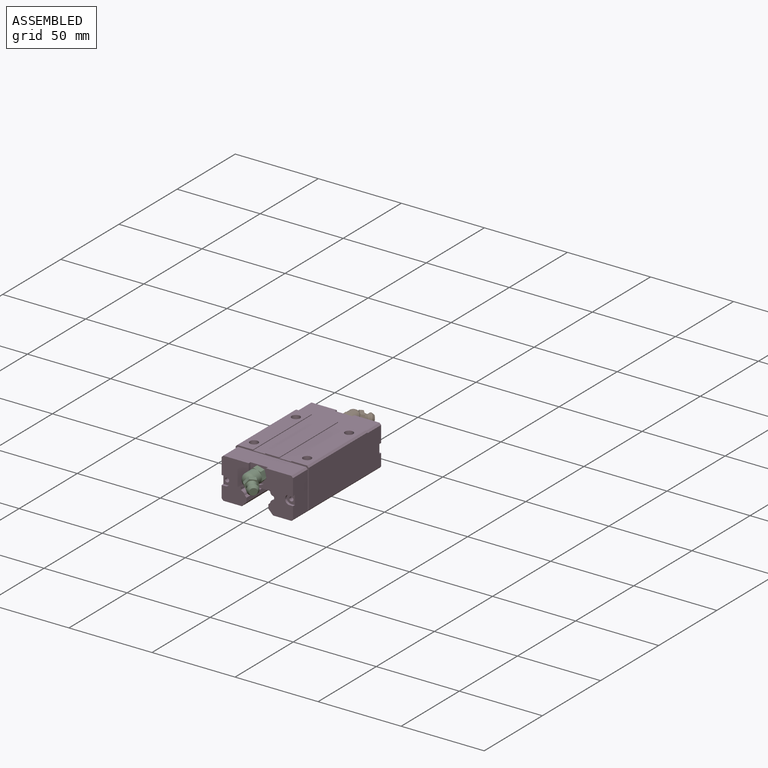
[diagram: assembled view]
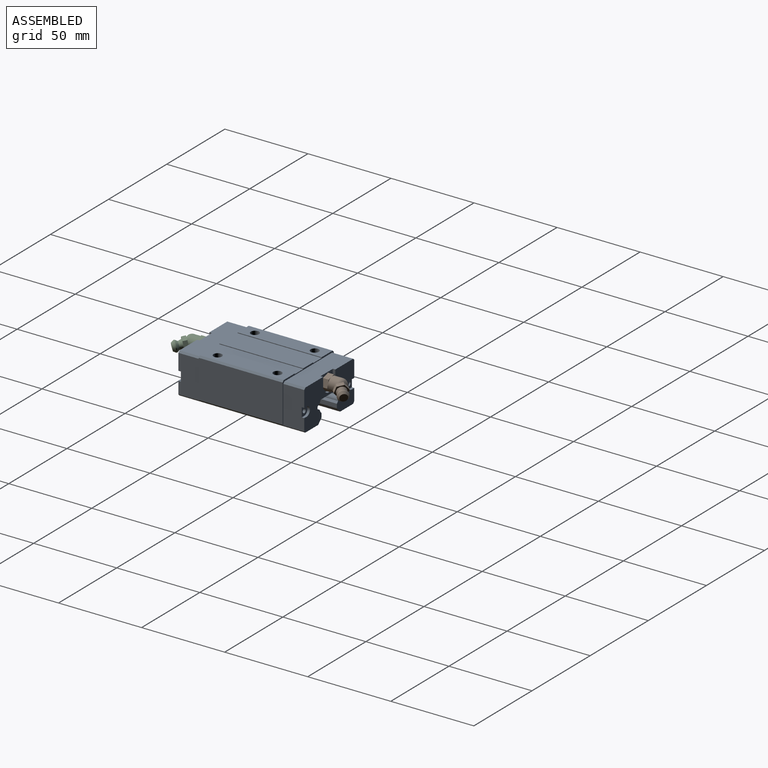
[diagram: assembled view, second angle]
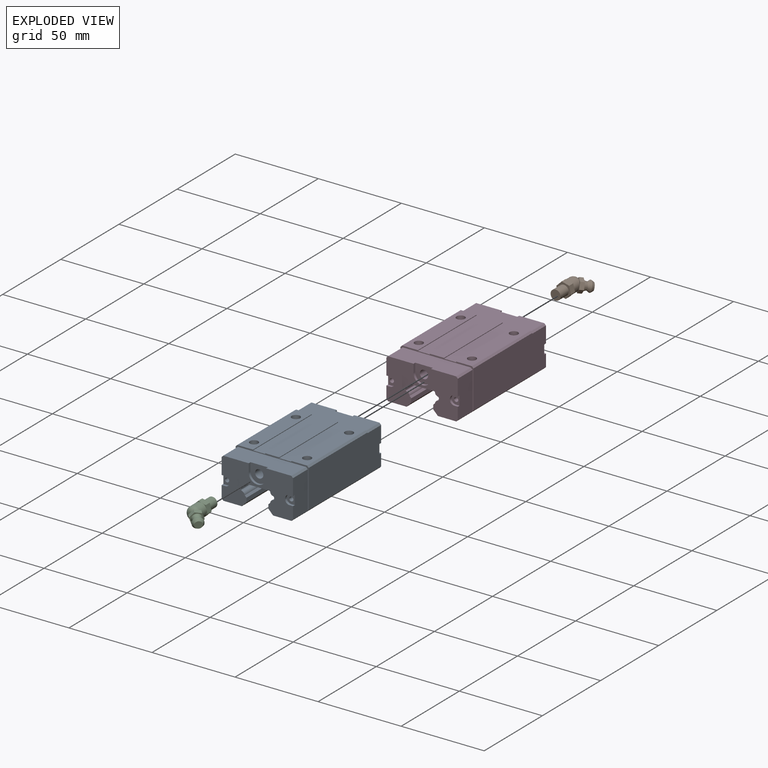
[diagram: exploded view]
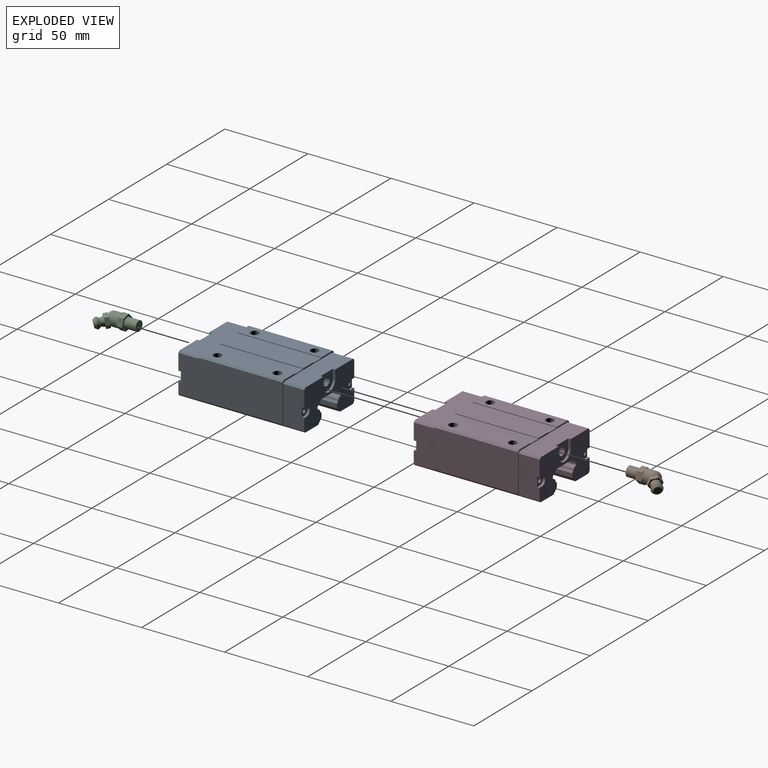
[diagram: exploded view, second angle]
FCSTD DOCUMENT  (FreeCAD 2021.614R24301 +3747 (Git))
Label: HGH20CA
License: Creative Commons Attribution
LicenseURL: http://creativecommons.org/licenses/by/4.0/
objects: Part::FeaturePython×21, App::FeaturePython×20, Sketcher::SketchObject×11, PartDesign::Pad×6, PartDesign::Pocket×4, App::Link×4, PartDesign::Plane×2, PartDesign::Body×2, App::DocumentObjectGroup×2, PartDesign::Mirrored×1, PartDesign::Fillet×1, PartDesign::Line×1, PartDesign::Revolution×1
note: 74 computed .brp shape members not serialized (recipe doc carries the construction recipe); baked Part::Feature solids carry a one-line shape summary decoded from their .brp

FEATURE [Sketcher::SketchObject] Sketch
  FullyConstrained = true
  MapMode = 5
  Placement = pos=(0,0,0) rot=(1,0,0;1.5708rad)
  Support = -> [XZ_Plane]
  sketch-geometry (20):
    g0: LineSegment StartX=-21 StartY=30 StartZ=0 EndX=-11.5 EndY=30 EndZ=0
    g1: LineSegment StartX=22 StartY=29 StartZ=0 EndX=22 EndY=6.1 EndZ=0
    g2: LineSegment StartX=20.5 StartY=4.6 StartZ=0 EndX=-20.5 EndY=4.6 EndZ=0
    g3: LineSegment StartX=-21.6 StartY=5.7 StartZ=0 EndX=-21.6 EndY=22 EndZ=0
    g4: GeomPoint [constr] X=0 Y=4.6 Z=0
    g5: LineSegment StartX=-20.5 StartY=4.6 StartZ=0 EndX=-21.6 EndY=5.7 EndZ=0
    g6: LineSegment StartX=20.5 StartY=4.6 StartZ=0 EndX=22 EndY=6.1 EndZ=0
    g7: LineSegment StartX=-22 StartY=29 StartZ=0 EndX=-21 EndY=30 EndZ=0
    g8: LineSegment StartX=21 StartY=30 StartZ=0 EndX=22 EndY=29 EndZ=0
    g9: LineSegment StartX=-11.5 StartY=30 StartZ=0 EndX=-11.5 EndY=29.6 EndZ=0
    g10: LineSegment StartX=-11.5 StartY=29.6 StartZ=0 EndX=-4.25 EndY=29.6 EndZ=0
    g11: LineSegment StartX=-4.25 StartY=29.6 StartZ=0 EndX=-4.25 EndY=30 EndZ=0
    g12: LineSegment StartX=4.25 StartY=30 StartZ=0 EndX=4.25 EndY=29.6 EndZ=0
    g13: LineSegment StartX=4.25 StartY=29.6 StartZ=0 EndX=11.5 EndY=29.6 EndZ=0
    g14: LineSegment StartX=11.5 StartY=29.6 StartZ=0 EndX=11.5 EndY=30 EndZ=0
    g15: LineSegment StartX=11.5 StartY=30 StartZ=0 EndX=21 EndY=30 EndZ=0
    g16: LineSegment StartX=-4.25 StartY=30 StartZ=0 EndX=4.25 EndY=30 EndZ=0
    g17: GeomPoint [constr] X=0 Y=30 Z=0
    g18: LineSegment StartX=-21.6 StartY=22 StartZ=0 EndX=-22 EndY=22 EndZ=0
    g19: LineSegment StartX=-22 StartY=22 StartZ=0 EndX=-22 EndY=29 EndZ=0
  constraints (54):
    c: Horizontal(g0)
    c: Horizontal(g2)
    c: Vertical(g1)
    c: Vertical(g3)
    c: PointOnObject(g4,g-2)
    c: Vertical(g9)
    c: Coincident(g10,g9)
    c: Horizontal(g10)
    c: Coincident(g11,g10)
    c: Vertical(g11)
    c: Vertical(g12)
    c: Coincident(g13,g12)
    c: Horizontal(g13)
    c: Coincident(g14,g13)
    c: Vertical(g14)
    c: Coincident(g0,g7)
    c: Coincident(g15,g8)
    c: Coincident(g1,g8)
    c: Coincident(g16,g12)
    c: Coincident(g15,g14)
    c: Tangent(g0,g15)
    c: Coincident(g0,g9)
    c: Coincident(g16,g11)
    c: Tangent(g0,g16)
    c: Coincident(g1,g6)
    c: Coincident(g2,g6)
    c: Coincident(g2,g5)
    c: Coincident(g3,g5)
    c: Symmetric(g2,g2,g4)
    c: PointOnObject(g17,g-2)
    c: Symmetric(g12,g11,g17)
    c: Equal(g13,g10)
    c: Symmetric(g8,g0,g17)
    c: Horizontal(g12,g10)
    c: DistanceX(g16,g16) = 8.5
    c: DistanceX(g2,g2) = 41
    c: DistanceY(g14,g14) = 0.4
    c: DistanceX(g14,g1) = 10.5
    c: DistanceY(g1,g8) = 1
    c: DistanceY(g-1,g2) = 4.6
    c: DistanceY(g-1,g8) = 30
    c: DistanceY(g2,g1) = 1.5
    c: Horizontal(g18)
    c: Coincident(g19,g18)
    c: Vertical(g19)
    c: DistanceX(g8,g1) = 1
    c: Coincident(g3,g18)
    c: Coincident(g7,g19)
    c: Horizontal(g1,g7)
    c: DistanceX(g7,g1) = 44
    c: DistanceX(g7,g0) = 10.5
    c: DistanceY(g18,g0) = 8
    c: DistanceX(g18,g3) = 0.4
    c: Angle(g2,g5) = 2.35619
FEATURE [PartDesign::Pad] Pad
  ClaimChildren = false
  Direction = (1,1,1)
  Fit = 0
  FitJoin = 0
  InnerFit = 0
  InnerFitJoin = 0
  InnerTaperAngle = 0
  InnerTaperAngleRev = 0
  Length = 50.5
  Length2 = 100
  Linearize = true
  Midplane = true
  NewSolid = false
  Placement = pos=(0,0,0) rot=(1,0,0;1.5708rad)
  Profile = -> Sketch
  Refine = true
  Suppress = false
  Type = 0
FEATURE [Sketcher::SketchObject] Sketch001
  ExternalGeometry = -> [Pad]
  FullyConstrained = true
  MapMode = 5
  Placement = pos=(0,1.32e-14,30) rot=(0,0,1;3.14159rad)
  Support = -> [Pad]
  sketch-geometry (4):
    g0: Circle CenterX=-16 CenterY=18 CenterZ=0 NormalX=0 NormalY=0 NormalZ=1 AngleXU=0 Radius=2.5
    g1: Circle CenterX=-16 CenterY=-18 CenterZ=0 NormalX=0 NormalY=0 NormalZ=1 AngleXU=0 Radius=2.5
    g2: Circle CenterX=16 CenterY=18 CenterZ=0 NormalX=0 NormalY=0 NormalZ=1 AngleXU=0 Radius=2.5
    g3: Circle CenterX=16 CenterY=-18 CenterZ=0 NormalX=0 NormalY=0 NormalZ=1 AngleXU=0 Radius=2.5
  constraints (12):
    c: Horizontal(g3,g1)
    c: Vertical(g1,g0)
    c: Vertical(g2,g3)
    c: Horizontal(g0,g2)
    c: DistanceX(g0,g2) = 32
    c: DistanceY(g3,g2) = 36
    c: Equal(g0,g2)
    c: Equal(g2,g3)
    c: Equal(g3,g1)
    c: Symmetric(g0,g3,g-1)
    c: DistanceX(g2,g-3) = 5.6
    c: Diameter(g2) = 5
FEATURE [Sketcher::SketchObject] Sketch002
  ExternalGeometry = -> [Pad]
  FullyConstrained = true
  MapMode = 5
  Placement = pos=(0,0,0) rot=(1,0,0;1.5708rad)
  Support = -> [XZ_Plane]
  sketch-geometry (8):
    g0: LineSegment StartX=-20.6 StartY=29.1 StartZ=0 EndX=20.4 EndY=29.1 EndZ=0
    g1: LineSegment StartX=21.4 StartY=28.1 StartZ=0 EndX=21.4 EndY=5.5 EndZ=0
    g2: LineSegment StartX=20.5 StartY=4.6 StartZ=0 EndX=-20.5 EndY=4.6 EndZ=0
    g3: LineSegment StartX=-21.6 StartY=5.7 StartZ=0 EndX=-21.6 EndY=28.1 EndZ=0
    g4: LineSegment StartX=-21.6 StartY=5.7 StartZ=0 EndX=-20.5 EndY=4.6 EndZ=0
    g5: LineSegment StartX=-21.6 StartY=28.1 StartZ=0 EndX=-20.6 EndY=29.1 EndZ=0
    g6: LineSegment StartX=20.4 StartY=29.1 StartZ=0 EndX=21.4 EndY=28.1 EndZ=0
    g7: LineSegment StartX=20.5 StartY=4.6 StartZ=0 EndX=21.4 EndY=5.5 EndZ=0
  constraints (22):
    c: Horizontal(g0)
    c: Horizontal(g2)
    c: Vertical(g1)
    c: Vertical(g3)
    c: Coincident(g3,g4)
    c: Coincident(g2,g4)
    c: Coincident(g2,g-7)
    c: Coincident(g3,g-7)
    c: Coincident(g0,g5)
    c: Coincident(g3,g5)
    c: Coincident(g0,g6)
    c: Coincident(g1,g6)
    c: Horizontal(g1,g3)
    c: DistanceX(g3,g0) = 1
    c: DistanceY(g3,g0) = 1
    c: DistanceX(g0,g1) = 1
    c: DistanceY(g2,g0) = 24.5
    c: DistanceX(g3,g1) = 43
    c: Coincident(g7,g-5)
    c: PointOnObject(g7,g-5)
    c: Coincident(g1,g7)
    c: PointOnObject(g2,g7)
FEATURE [PartDesign::Pad] Pad001
  BaseFeature = -> Pad
  ClaimChildren = false
  Direction = (1,1,1)
  Fit = 0
  FitJoin = 0
  InnerFit = 0
  InnerFitJoin = 0
  InnerTaperAngle = 0
  InnerTaperAngleRev = 0
  Length = 75.8
  Length2 = 100
  Linearize = true
  Midplane = true
  NewSolid = false
  Placement = pos=(0,0,0) rot=(1,0,0;1.5708rad)
  Profile = -> Sketch002
  Refine = true
  Suppress = false
  Type = 0
FEATURE [Sketcher::SketchObject] Sketch003
  ExternalGeometry = -> [Pad001]
  FullyConstrained = true
  MapMode = 5
  Placement = pos=(0,-37.9,8.3e-15) rot=(1,0,0;1.5708rad)
  Support = -> [Pad001]
  sketch-geometry (14):
    g0: ArcOfCircle CenterX=0 CenterY=24.1 CenterZ=0 NormalX=0 NormalY=0 NormalZ=1 AngleXU=0 Radius=5.25 StartAngle=3.14159 EndAngle=6.28319
    g1: ArcOfCircle CenterX=-19.35 CenterY=15.6 CenterZ=0 NormalX=0 NormalY=0 NormalZ=1 AngleXU=0 Radius=2.75 StartAngle=4.71239 EndAngle=7.85398
    g2: ArcOfCircle CenterX=19.35 CenterY=15.6 CenterZ=0 NormalX=0 NormalY=0 NormalZ=1 AngleXU=0 Radius=2.75 StartAngle=1.5708 EndAngle=4.71239
    g3: LineSegment StartX=-5.25 StartY=24.1 StartZ=0 EndX=-5.25 EndY=29.1 EndZ=0
    g4: LineSegment StartX=5.25 StartY=24.1 StartZ=0 EndX=5.25 EndY=29.1 EndZ=0
    g5: LineSegment StartX=-5.25 StartY=29.1 StartZ=0 EndX=5.25 EndY=29.1 EndZ=0
    g6: LineSegment StartX=-19.35 StartY=18.35 StartZ=0 EndX=-21.6 EndY=18.35 EndZ=0
    g7: LineSegment StartX=-19.35 StartY=12.85 StartZ=0 EndX=-21.6 EndY=12.85 EndZ=0
    g8: LineSegment [constr] StartX=-19.35 StartY=15.6 StartZ=0 EndX=0 EndY=15.6 EndZ=0
    g9: LineSegment [constr] StartX=0 StartY=15.6 StartZ=0 EndX=19.35 EndY=15.6 EndZ=0
    g10: LineSegment StartX=19.35 StartY=18.35 StartZ=0 EndX=21.4 EndY=18.35 EndZ=0
    g11: LineSegment StartX=19.35 StartY=12.85 StartZ=0 EndX=21.4 EndY=12.85 EndZ=0
    g12: LineSegment StartX=-21.6 StartY=18.35 StartZ=0 EndX=-21.6 EndY=12.85 EndZ=0
    g13: LineSegment StartX=21.4 StartY=18.35 StartZ=0 EndX=21.4 EndY=12.85 EndZ=0
  constraints (38):
    c: PointOnObject(g0,g-2)
    c: Horizontal(g1,g2)
    c: Equal(g1,g2)
    c: Diameter(g0) = 10.5
    c: DistanceY(g0,g-3) = 5
    c: PointOnObject(g3,g-3)
    c: Vertical(g3)
    c: PointOnObject(g4,g-3)
    c: Vertical(g4)
    c: Tangent(g0,g3) = 1.5708
    c: Tangent(g0,g4) = -1.5708
    c: Coincident(g5,g3)
    c: Coincident(g5,g4)
    c: PointOnObject(g6,g-4)
    c: Horizontal(g6)
    c: PointOnObject(g7,g-4)
    c: Horizontal(g7)
    c: Diameter(g1) = 5.5
    c: Coincident(g8,g1)
    c: Horizontal(g8)
    c: Coincident(g9,g8)
    c: Coincident(g9,g2)
    c: Equal(g9,g8)
    c: PointOnObject(g10,g-5)
    c: Horizontal(g10)
    c: PointOnObject(g11,g-5)
    c: Horizontal(g11)
    c: DistanceY(g2,g-3) = 13.5
    c: DistanceX(g-4,g1) = 2.25
    c: PointOnObject(g8,g-2)
    c: Tangent(g1,g7) = 1.5708
    c: Tangent(g1,g6) = -1.5708
    c: Tangent(g2,g10) = 1.5708
    c: Tangent(g2,g11) = -1.5708
    c: Coincident(g12,g6)
    c: Coincident(g12,g7)
    c: Coincident(g13,g10)
    c: Coincident(g13,g11)
FEATURE [PartDesign::Pocket] Pocket
  BaseFeature = -> Pad001
  ClaimChildren = false
  Fit = 0
  FitJoin = 0
  InnerFit = 0
  InnerFitJoin = 0
  InnerTaperAngle = 0
  InnerTaperAngleRev = 0
  Length = 1.5
  Length2 = 100
  Linearize = true
  NewSolid = false
  Placement = pos=(0,0,0) rot=(1,0,0;1.5708rad)
  Profile = -> Sketch003
  Refine = true
  Suppress = false
  Type = 0
FEATURE [Sketcher::SketchObject] Sketch004
  ExternalGeometry = -> [Pocket]
  FullyConstrained = true
  MapMode = 5
  Placement = pos=(0,-36.4,2.95e-14) rot=(1,0,0;1.5708rad)
  Support = -> [Pocket]
  sketch-geometry (3):
    g0: Circle CenterX=-19.35 CenterY=15.6 CenterZ=0 NormalX=0 NormalY=0 NormalZ=1 AngleXU=0 Radius=1.25
    g1: Circle CenterX=19.35 CenterY=15.6 CenterZ=0 NormalX=0 NormalY=0 NormalZ=1 AngleXU=0 Radius=1.25
    g2: Circle CenterX=0 CenterY=24.1 CenterZ=0 NormalX=0 NormalY=0 NormalZ=1 AngleXU=0 Radius=2.5
  constraints (6):
    c: Coincident(g0,g-3)
    c: Coincident(g1,g-5)
    c: Coincident(g2,g-4)
    c: Diameter(g2) = 5
    c: Diameter(g1) = 2.5
    c: Equal(g1,g0)
FEATURE [PartDesign::Pocket] Pocket001
  BaseFeature = -> Pocket
  ClaimChildren = false
  Fit = 0
  FitJoin = 0
  InnerFit = 0
  InnerFitJoin = 0
  InnerTaperAngle = 0
  InnerTaperAngleRev = 0
  Length = 8
  Length2 = 100
  Linearize = true
  NewSolid = false
  Placement = pos=(0,0,0) rot=(1,0,0;1.5708rad)
  Profile = -> Sketch004
  Refine = true
  Suppress = false
  Type = 0
FEATURE [PartDesign::Mirrored] Mirrored
  BaseFeature = -> Pocket001
  CopyShape = false
  MirrorPlane = -> XZ_Plane
  NewSolid = false
  OriginalSubs = -> [Pocket001,Pocket]
  Originals = -> [Pocket001,Pocket]
  ParallelTransform = true
  Placement = pos=(0,0,0) rot=(1,0,0;1.5708rad)
  Refine = true
  SubTransform = true
  Suppress = false
  _Version = 1
FEATURE [Sketcher::SketchObject] Sketch005
  FullyConstrained = true
  MapMode = 5
  Placement = pos=(0,0,0) rot=(1,0,0;1.5708rad)
  Support = -> [XZ_Plane001]
  sketch-geometry (1):
    g0: Circle CenterX=0 CenterY=0 CenterZ=0 NormalX=0 NormalY=0 NormalZ=1 AngleXU=0 Radius=3
  constraints (2):
    c: Coincident(g0,g-1)
    c: Radius(g0) = 3
FEATURE [PartDesign::Pad] Pad002
  ClaimChildren = false
  Direction = (1,1,1)
  Fit = 0
  FitJoin = 0
  InnerFit = 0
  InnerFitJoin = 0
  InnerTaperAngle = 0
  InnerTaperAngleRev = 0
  Length = 7
  Length2 = 100
  Linearize = true
  NewSolid = false
  Placement = pos=(0,0,0) rot=(1,0,0;1.5708rad)
  Profile = -> Sketch005
  Refine = true
  Suppress = false
  Type = 0
FEATURE [Sketcher::SketchObject] Sketch006
  FullyConstrained = true
  MapMode = 5
  Placement = pos=(0,0,0) rot=(-1,0,0;1.5708rad)
  Support = -> [Pad002]
  sketch-geometry (7):
    g0: LineSegment StartX=4 StartY=-2.3094 StartZ=0 EndX=4 EndY=2.3094 EndZ=0
    g1: LineSegment StartX=4 StartY=2.3094 StartZ=0 EndX=-4e-16 EndY=4.6188 EndZ=0
    g2: LineSegment StartX=-4e-16 StartY=4.6188 StartZ=0 EndX=-4 EndY=2.3094 EndZ=0
    g3: LineSegment StartX=-4 StartY=2.3094 StartZ=0 EndX=-4 EndY=-2.3094 EndZ=0
    g4: LineSegment StartX=-4 StartY=-2.3094 StartZ=0 EndX=4e-16 EndY=-4.6188 EndZ=0
    g5: LineSegment StartX=4e-16 StartY=-4.6188 StartZ=0 EndX=4 EndY=-2.3094 EndZ=0
    g6: Circle [constr] CenterX=0 CenterY=0 CenterZ=0 NormalX=0 NormalY=0 NormalZ=1 AngleXU=0 Radius=4.6188
  constraints (16):
    c: Coincident(g0,g1)
    c: Coincident(g1,g2)
    c: Coincident(g2,g3)
    c: Coincident(g3,g4)
    c: Coincident(g4,g5)
    c: Coincident(g5,g0)
    c: Equal(g0, g1-g5) x5
    c: PointOnObject(g0,g6)
    c: PointOnObject(g1,g6)
    c: PointOnObject(g2,g6)
    c: PointOnObject(g3,g6)
    c: PointOnObject(g4,g6)
    c: PointOnObject(g5,g6)
    c: Coincident(g6,g-1)
    c: Vertical(g0)
    c: DistanceX(g2,g0) = 8
FEATURE [PartDesign::Pad] Pad003
  BaseFeature = -> Pad002
  ClaimChildren = false
  Direction = (1,1,1)
  Fit = 0
  FitJoin = 0
  InnerFit = 0
  InnerFitJoin = 0
  InnerTaperAngle = 0
  InnerTaperAngleRev = 0
  Length = 3.5
  Length2 = 100
  Linearize = true
  NewSolid = false
  Placement = pos=(0,0,0) rot=(1,0,0;1.5708rad)
  Profile = -> Sketch006
  Refine = true
  Suppress = false
  Type = 0
FEATURE [Sketcher::SketchObject] Sketch007
  FullyConstrained = true
  MapMode = 5
  Placement = pos=(0,3.5,8e-16) rot=(-1,0,0;1.5708rad)
  Support = -> [Pad003]
  sketch-geometry (1):
    g0: Circle CenterX=0 CenterY=0 CenterZ=0 NormalX=0 NormalY=0 NormalZ=1 AngleXU=0 Radius=4
  constraints (2):
    c: Coincident(g0,g-1)
    c: Radius(g0) = 4
FEATURE [PartDesign::Pad] Pad004
  BaseFeature = -> Pad003
  ClaimChildren = false
  Direction = (1,1,1)
  Fit = 0
  FitJoin = 0
  InnerFit = 0
  InnerFitJoin = 0
  InnerTaperAngle = 0
  InnerTaperAngleRev = 0
  Length = 8
  Length2 = 100
  Linearize = true
  NewSolid = false
  Placement = pos=(0,0,0) rot=(1,0,0;1.5708rad)
  Profile = -> Sketch007
  Refine = true
  Suppress = false
  Type = 0
FEATURE [PartDesign::Fillet] Fillet
  Base = -> Pad004 [Edge35]
  BaseFeature = -> Pad004
  NewSolid = false
  Placement = pos=(0,0,0) rot=(1,0,0;1.5708rad)
  Radius = 3
  Refine = true
  SupportTransform = false
  Suppress = false
FEATURE [PartDesign::Plane] DatumPlane
  AttachmentOffset = pos=(0,0,0) rot=(1,0,0;0.785398rad)
  Length = 50
  MapMode = 5
  MinimumLength = 10
  MinimumWidth = 10
  Placement = pos=(0,11.5,3e-15) rot=(-1,0,0;0.785398rad)
  ResizeMode = 0
  Support = -> [Fillet]
  Width = 70.7107
FEATURE [Sketcher::SketchObject] Sketch008
  FullyConstrained = true
  MapMode = 5
  Placement = pos=(0,11.5,3.6e-15) rot=(-1,0,0;0.785398rad)
  Support = -> [DatumPlane]
  sketch-geometry (7):
    g0: LineSegment StartX=3.5 StartY=-4.62073 StartZ=0 EndX=3.5 EndY=-0.579274 EndZ=0
    g1: LineSegment StartX=3.5 StartY=-0.579274 StartZ=0 EndX=8.273e-13 EndY=1.44145 EndZ=0
    g2: LineSegment StartX=8.273e-13 StartY=1.44145 StartZ=0 EndX=-3.5 EndY=-0.579274 EndZ=0
    g3: LineSegment StartX=-3.5 StartY=-0.579274 StartZ=0 EndX=-3.5 EndY=-4.62073 EndZ=0
    g4: LineSegment StartX=-3.5 StartY=-4.62073 StartZ=0 EndX=-8.273e-13 EndY=-6.64145 EndZ=0
    g5: LineSegment StartX=-8.273e-13 StartY=-6.64145 StartZ=0 EndX=3.5 EndY=-4.62073 EndZ=0
    g6: Circle [constr] CenterX=0 CenterY=-2.6 CenterZ=0 NormalX=0 NormalY=0 NormalZ=1 AngleXU=0 Radius=4.04145
  constraints (17):
    c: Coincident(g0,g1)
    c: Coincident(g1,g2)
    c: Coincident(g2,g3)
    c: Coincident(g3,g4)
    c: Coincident(g4,g5)
    c: Coincident(g5,g0)
    c: Equal(g0, g1-g5) x5
    c: PointOnObject(g0,g6)
    c: PointOnObject(g1,g6)
    c: PointOnObject(g2,g6)
    c: PointOnObject(g3,g6)
    c: PointOnObject(g4,g6)
    c: PointOnObject(g5,g6)
    c: PointOnObject(g6,g-2)
    c: Vertical(g0)
    c: DistanceX(g2,g0) = 7
    c: DistanceY(g6,g-1) = 2.6
FEATURE [PartDesign::Pad] Pad005
  BaseFeature = -> Fillet
  ClaimChildren = false
  Direction = (1,1,1)
  Fit = 0
  FitJoin = 0
  InnerFit = 0
  InnerFitJoin = 0
  InnerTaperAngle = 0
  InnerTaperAngleRev = 0
  Length = 2.5
  Length2 = 100
  Linearize = true
  NewSolid = false
  Placement = pos=(0,0,0) rot=(1,0,0;1.5708rad)
  Profile = -> Sketch008
  Refine = true
  Suppress = false
  Type = 0
FEATURE [PartDesign::Plane] DatumPlane001
  AttachmentOffset = pos=(0,0,0) rot=(0,1,0;1.5708rad)
  Length = 70.7107
  MapMode = 5
  MinimumLength = 10
  MinimumWidth = 10
  Placement = pos=(2e-16,7.51777,7.51777) rot=(-0.357407,0.862856,-0.357407;1.71777rad)
  ResizeMode = 0
  Support = -> [Pad005]
  Width = 70.7107
FEATURE [Sketcher::SketchObject] Sketch009
  ExternalGeometry = -> [Pad005]
  FullyConstrained = true
  MapMode = 5
  Placement = pos=(2e-16,7.51777,7.51777) rot=(-0.357407,0.862856,-0.357407;1.71777rad)
  Support = -> [DatumPlane001]
  sketch-geometry (7):
    g0: LineSegment StartX=0 StartY=8.43173 StartZ=0 EndX=-2 EndY=7.78173 EndZ=0
    g1: LineSegment StartX=-4 StartY=8.78173 StartZ=0 EndX=-5.5 EndY=7.78173 EndZ=0
    g2: LineSegment StartX=-5.5 StartY=7.78173 StartZ=0 EndX=-5.5 EndY=5.53173 EndZ=0
    g3: LineSegment StartX=-5.5 StartY=5.53173 StartZ=0 EndX=1.8e-15 EndY=5.53173 EndZ=0
    g4: LineSegment StartX=1.8e-15 StartY=5.53173 StartZ=0 EndX=0 EndY=8.43173 EndZ=0
    g5: LineSegment StartX=-4 StartY=8.78173 StartZ=0 EndX=-3.5 EndY=8.78173 EndZ=0
    g6: LineSegment StartX=-3.5 StartY=8.78173 StartZ=0 EndX=-2 EndY=7.78173 EndZ=0
  constraints (20):
    c: PointOnObject(g0,g-2)
    c: Vertical(g2)
    c: Coincident(g3,g2)
    c: Horizontal(g3)
    c: Coincident(g4,g3)
    c: Coincident(g4,g0)
    c: Symmetric(g-3,g-4,g3)
    c: DistanceY(g4,g4) = 2.9
    c: DistanceX(g3,g3) = 5.5
    c: Coincident(g2,g1)
    c: DistanceX(g1,g1) = 1.5
    c: Coincident(g5,g1)
    c: Coincident(g6,g5)
    c: Coincident(g6,g0)
    c: Horizontal(g5)
    c: DistanceX(g5,g0) = 1.5
    c: Horizontal(g1,g0)
    c: DistanceX(g1,g0) = 3.5
    c: DistanceY(g2,g2) = 2.25
    c: DistanceY(g2,g1) = 3.25
FEATURE [PartDesign::Line] DatumLine
  AttacherType = Attacher::AttachEngineLine
  Length = 70.7107
  MapMode = 29
  MinimumLength = 10
  Placement = pos=(2e-16,11.4293,3.60624) rot=(1,0,0;2.35619rad)
  ResizeMode = 0
  Support = -> [Sketch009]
FEATURE [PartDesign::Revolution] Revolution
  Angle = 360
  Axis = (0,-0.707107,-0.707107)
  Base = (2e-16,11.4293,3.60624)
  BaseFeature = -> Pad005
  ClaimChildren = false
  Fit = 0
  FitJoin = 0
  InnerFit = 0
  InnerFitJoin = 0
  NewSolid = false
  Placement = pos=(0,0,0) rot=(1,0,0;1.5708rad)
  Profile = -> Sketch009
  ReferenceAxis = -> DatumLine
  Refine = true
  Suppress = false
FEATURE [PartDesign::Body] Body001  label="Greaser"
  AutoGroupSolids = false
  ExportMode = 0
  Group = -> [Sketch005,Pad002,Sketch006,Pad003,Sketch007,Pad004,Fillet,DatumPlane,Sketch008,Pad005,DatumPlane001,Sketch009,DatumLine,Revolution]
  Origin = -> Origin001
  Placement = pos=(0.291005,-51,25.9599) rot=(-0.793353,0,0.608761;3.14159rad)
  Tip = -> Revolution
  _ExportChildren = -> [Pad002,Pad003,Pad004,Fillet,DatumPlane,Pad005,DatumPlane001,DatumLine,Revolution]
  _GroupVersion = 1
FEATURE [App::Link] Link001  label="Link001(HGH20CA)"
  AutoLinkLabel = true
  LinkedObject = -> Body
  SyncGroupVisibility = false
  _LinkVersion = 1
FEATURE [App::Link] Link002  label="Link002(Greaser)"
  AutoLinkLabel = true
  LinkPlacement = pos=(-9e-16,36.4,24.1) rot=(0,-1,0;4.45059rad)
  LinkedObject = -> Body001
  Placement = pos=(-9e-16,36.4,24.1) rot=(0,-1,0;4.45059rad)
  SyncGroupVisibility = false
  _LinkVersion = 1
FEATURE [Part::FeaturePython] Screw  label="M6x8-Screw"  # Fasteners workbench fastener (typed FeaturePython)
  Placement = pos=(0,-36.4,24.1) rot=(1,0,0;1.5708rad)
  diameter = 4
  invert = false
  length = 13
  lengthCustom = 8
  matchOuter = false
  offset = 0
  thread = false
  type = 39
FEATURE [Part::FeaturePython] Parts  # WARN: FeaturePython — macro-defined, semantics opaque (R4)
  Group = -> [Link001,Link002,Screw]
  GroupMode = 0
  _LinkVersion = 1
FEATURE [App::Link] Link003  label="Link003(Greaser)"
  AutoLinkLabel = true
  LinkPlacement = pos=(-1e-16,-36.4,24.1) rot=(-0.793353,0,-0.608761;3.14159rad)
  LinkedObject = -> Body001
  Placement = pos=(-1e-16,-36.4,24.1) rot=(-0.793353,0,-0.608761;3.14159rad)
  SyncGroupVisibility = false
  _LinkVersion = 1
FEATURE [App::Link] Link004  label="Link004(HGH20CA)"
  AutoLinkLabel = true
  LinkedObject = -> Body
  SyncGroupVisibility = false
  _LinkVersion = 1
FEATURE [Part::FeaturePython] Screw001  label="M6x8-Screw001"  # Fasteners workbench fastener (typed FeaturePython)
  Placement = pos=(0,36.4,24.1) rot=(-1,0,0;1.5708rad)
  diameter = 4
  invert = false
  length = 13
  lengthCustom = 8
  matchOuter = false
  offset = 0
  thread = false
  type = 39
FEATURE [Part::FeaturePython] Parts001  # WARN: FeaturePython — macro-defined, semantics opaque (R4)
  Group = -> [Link003,Link004,Screw001]
  GroupMode = 0
  _LinkVersion = 1
FEATURE [Sketcher::SketchObject] Sketch010
  FullyConstrained = true
  MapMode = 5
  Placement = pos=(0,0,0) rot=(1,0,0;1.5708rad)
  Support = -> [XZ_Plane]
  sketch-geometry (29):
    g0: LineSegment StartX=-9 StartY=0 StartZ=0 EndX=-10 EndY=1 EndZ=0
    g1: LineSegment StartX=-10 StartY=1 StartZ=0 EndX=-10 EndY=4 EndZ=0
    g2: LineSegment StartX=-10 StartY=4 StartZ=0 EndX=-6.6 EndY=7.45 EndZ=0
    g3: LineSegment StartX=-6.6 StartY=7.45 StartZ=0 EndX=-6.6 EndY=9.95 EndZ=0
    g4: LineSegment StartX=-6.6 StartY=9.95 StartZ=0 EndX=-7.65996 EndY=11.05 EndZ=0
    g5: ArcOfCircle CenterX=-9.8 CenterY=10.8 CenterZ=0 NormalX=0 NormalY=0 NormalZ=1 AngleXU=0 Radius=2.15459 StartAngle=0.116293 EndAngle=1.47784
    g6: LineSegment StartX=-9.6 StartY=12.9453 StartZ=0 EndX=-10 EndY=13.3453 EndZ=0
    g7: LineSegment StartX=-10 StartY=13.3453 StartZ=0 EndX=-10 EndY=14.6953 EndZ=0
    g8: LineSegment StartX=-10 StartY=14.6953 StartZ=0 EndX=-9.6 EndY=15.0953 EndZ=0
    g9: ArcOfCircle CenterX=-9.8 CenterY=17.2406 CenterZ=0 NormalX=0 NormalY=0 NormalZ=1 AngleXU=0 Radius=2.15459 StartAngle=4.80535 EndAngle=6.21789
    g10: LineSegment StartX=-7.65 StartY=17.1 StartZ=0 EndX=-7.25 EndY=17.5 EndZ=0
    g11: LineSegment StartX=-7.25 StartY=17.5 StartZ=0 EndX=0 EndY=17.5 EndZ=0
    g12: LineSegment StartX=0 StartY=17.5 StartZ=0 EndX=7.25 EndY=17.5 EndZ=0
    g13: LineSegment StartX=7.25 StartY=17.5 StartZ=0 EndX=7.65 EndY=17.1 EndZ=0
    g14: ArcOfCircle CenterX=9.8 CenterY=17.2406 CenterZ=0 NormalX=0 NormalY=0 NormalZ=1 AngleXU=0 Radius=2.15459 StartAngle=3.20688 EndAngle=4.61943
    g15: LineSegment StartX=9.6 StartY=15.0953 StartZ=0 EndX=10 EndY=14.6953 EndZ=0
    g16: LineSegment StartX=10 StartY=14.6953 StartZ=0 EndX=10 EndY=13.3453 EndZ=0
    g17: LineSegment StartX=10 StartY=13.3453 StartZ=0 EndX=9.6 EndY=12.9453 EndZ=0
    g18: ArcOfCircle CenterX=9.8 CenterY=10.8 CenterZ=0 NormalX=0 NormalY=0 NormalZ=1 AngleXU=0 Radius=2.15459 StartAngle=1.66376 EndAngle=3.0253
    g19: LineSegment StartX=7.65996 StartY=11.05 StartZ=0 EndX=6.6 EndY=9.95 EndZ=0
    g20: LineSegment StartX=6.6 StartY=9.95 StartZ=0 EndX=6.6 EndY=7.45 EndZ=0
    g21: LineSegment StartX=6.6 StartY=7.45 StartZ=0 EndX=10 EndY=4 EndZ=0
    g22: LineSegment StartX=10 StartY=4 StartZ=0 EndX=10 EndY=1 EndZ=0
    g23: LineSegment StartX=10 StartY=1 StartZ=0 EndX=9 EndY=0 EndZ=0
    g24: LineSegment StartX=-4 StartY=0 StartZ=0 EndX=-4 EndY=0.4 EndZ=0
    g25: LineSegment StartX=-4 StartY=0.4 StartZ=0 EndX=4 EndY=0.4 EndZ=0
    g26: LineSegment StartX=4 StartY=0.4 StartZ=0 EndX=4 EndY=0 EndZ=0
    g27: LineSegment StartX=-9 StartY=0 StartZ=0 EndX=-4 EndY=0 EndZ=0
    g28: LineSegment StartX=4 StartY=0 StartZ=0 EndX=9 EndY=0 EndZ=0
  constraints (89):
    c: Coincident(g0,g1)
    c: Vertical(g1)
    c: Coincident(g1,g2)
    c: Coincident(g2,g3)
    c: Vertical(g3)
    c: Coincident(g3,g4)
    c: Coincident(g5,g4)
    c: Coincident(g6,g5)
    c: Coincident(g6,g7)
    c: Vertical(g7)
    c: Coincident(g7,g8)
    c: Coincident(g9,g8)
    c: Coincident(g9,g10)
    c: Coincident(g10,g11)
    c: PointOnObject(g11,g-2)
    c: Horizontal(g11)
    c: Coincident(g11,g12)
    c: Horizontal(g12)
    c: Coincident(g12,g13)
    c: Coincident(g14,g13)
    c: Coincident(g14,g15)
    c: Coincident(g15,g16)
    c: Coincident(g16,g17)
    c: Coincident(g18,g17)
    c: Coincident(g18,g19)
    c: Coincident(g19,g20)
    c: Vertical(g20)
    c: Coincident(g20,g21)
    c: Coincident(g21,g22)
    c: Vertical(g22)
    c: Coincident(g22,g23)
    c: PointOnObject(g23,g-1)
    c: Equal(g0,g23)
    c: Equal(g22,g1)
    c: Equal(g2,g21)
    c: Equal(g20,g3)
    c: Equal(g4,g19)
    c: Equal(g5,g18)
    c: Equal(g18,g14)
    c: Equal(g14,g9)
    c: Equal(g15,g17)
    c: Vertical(g16)
    c: Equal(g16,g7)
    c: Equal(g10,g13)
    c: Equal(g12,g11)
    c: DistanceX(g10,g12) = 14.5
    c: Horizontal(g22,g0)
    c: DistanceX(g0,g22) = 20
    c: Horizontal(g2,g20)
    c: DistanceX(g0,g23) = 18
    c: DistanceY(g23,g22) = 1
    c: DistanceY(g22,g22) = 3
    c: DistanceX(g2,g20) = 13.2
    c: DistanceY(g21,g20) = 3.45
    c: DistanceY(g20,g20) = 2.5
    c: Horizontal(g18,g5)
    c: Horizontal(g18,g4)
    c: Horizontal(g9,g13)
    c: Horizontal(g9,g14)
    c: Vertical(g9,g5)
    c: DistanceX(g9,g13) = 15.3
    c: DistanceY(g13,g12) = 0.4
    c: Vertical(g15,g21)
    c: Vertical(g7,g1)
    c: Equal(g13,g15)
    c: Equal(g17,g6)
    c: Equal(g6,g8)
    c: DistanceY(g19,g18) = 1.1
    c: DistanceY(g23,g18) = 10.8
    c: DistanceX(g5,g17) = 19.2
    c: DistanceY(g23,g12) = 17.5
    c: DistanceY(g17,g16) = 0.4
    c: DistanceY(g15,g14) = 0.4
    c: DistanceY(g7,g7) = 1.35
    c: DistanceX(g-1,g18) = 9.8
    c: Coincident(g24,g25)
    c: Horizontal(g25)
    c: Coincident(g25,g26)
    c: Vertical(g26)
    c: Vertical(g24)
    c: Symmetric(g26,g24,g-1)
    c: Coincident(g27,g0)
    c: Coincident(g27,g24)
    c: Horizontal(g27)
    c: Coincident(g28,g26)
    c: Coincident(g28,g23)
    c: DistanceX(g25,g25) = 8
    c: DistanceY(g26,g26) = 0.4
    c: Symmetric(g23,g0,g-1)
FEATURE [PartDesign::Pocket] Pocket002
  BaseFeature = -> Mirrored
  ClaimChildren = false
  Fit = 0
  FitJoin = 0
  InnerFit = 0
  InnerFitJoin = 0
  InnerTaperAngle = 0
  InnerTaperAngleRev = 0
  Length = 5
  Length2 = 100
  Linearize = true
  Midplane = true
  NewSolid = false
  Placement = pos=(0,0,0) rot=(1,0,0;1.5708rad)
  Profile = -> Sketch010
  Refine = true
  Suppress = false
  Type = 1
FEATURE [PartDesign::Pocket] Pocket003
  BaseFeature = -> Pocket002
  ClaimChildren = false
  Fit = 0
  FitJoin = 0
  InnerFit = 0
  InnerFitJoin = 0
  InnerTaperAngle = 0
  InnerTaperAngleRev = 0
  Length = 9
  Length2 = 100
  Linearize = true
  NewSolid = false
  Placement = pos=(0,0,0) rot=(1,0,0;1.5708rad)
  Profile = -> Sketch001
  Refine = true
  Suppress = false
  Type = 0
FEATURE [PartDesign::Body] Body  label="HGH20CA"
  AutoGroupSolids = false
  ExportMode = 0
  Group = -> [Sketch,Pad,Sketch001,Sketch002,Pad001,Sketch003,Pocket,Sketch004,Pocket001,Mirrored,Sketch010,Pocket002,Pocket003]
  Origin = -> Origin
  Tip = -> Pocket003
  _ExportChildren = -> [Pad,Pad001,Pocket,Pocket001,Mirrored,Pocket002,Pocket003]
  _GroupVersion = 1
FEATURE [App::DocumentObjectGroup] Group  label="Components"
  ExportMode = 1
  Group = -> [Body,Body001]
  _GroupVersion = 1
FEATURE [Part::FeaturePython] Assembly  label="HGH20CA-L-Assembly"  # WARN: FeaturePython — macro-defined, semantics opaque (R4)
  AutoRelax = true
  BuildShape = 0
  Freeze = false
  Group = -> [Constraints,Elements,Parts]
  Placement = pos=(0,54,-7.15256e-07) rot=(0,0,1;0rad)
  Verbose = false
  _LinkVersion = 1
  _SolverType = 1
  _Version = 1
FEATURE [App::FeaturePython] Constraints  # WARN: FeaturePython — macro-defined, semantics opaque (R4)
  Group = -> [Constraint,Constraint001,Constraint002]
  _LinkVersion = 1
  _Version = 1
FEATURE [App::FeaturePython] Elements  # WARN: FeaturePython — macro-defined, semantics opaque (R4)
  Group = -> [_Element,_Element001,_Element002,_Element003,_Element004,Element004]
  _LinkVersion = 1
FEATURE [App::FeaturePython] Constraint  label="Locked"  # WARN: FeaturePython — macro-defined, semantics opaque (R4)
  Disabled = false
  Group = -> [ElementLink]
  _ConstraintType = 0
  _LinkVersion = 1
  _Parent = -> Constraints
FEATURE [App::FeaturePython] ElementLink  label="_Element"  # link proxy (typed FeaturePython)
  LinkTransform = true
  LinkedObject = -> _Element
  _LinkVersion = 1
  _Parent = -> Constraint
FEATURE [Part::FeaturePython] _Element  # link proxy (typed FeaturePython)
  Detach = false
  LinkTransform = true
  LinkedObject = -> Link001 [Pocket003.Face62]
  _LinkVersion = 1
  _Parent = -> Elements
FEATURE [App::FeaturePython] Constraint001  label="Attachment"  # WARN: FeaturePython — macro-defined, semantics opaque (R4)
  Cascade = false
  Disabled = false
  Group = -> [ElementLink001,ElementLink002]
  Multiply = false
  _ConstraintType = 45
  _LinkVersion = 1
  _Parent = -> Constraints
FEATURE [App::FeaturePython] ElementLink001  label="_Element001"  # link proxy (typed FeaturePython)
  LinkTransform = true
  LinkedObject = -> _Element001
  Offset = pos=(0,0,0) rot=(0,0,1;1.8326rad)
  Placement = pos=(23.2788,-2.84e-14,30.3375) rot=(0,-1,0;1.8326rad)
  _LinkVersion = 1
  _Parent = -> Constraint001
FEATURE [Part::FeaturePython] _Element001  # link proxy (typed FeaturePython)
  Detach = false
  LinkTransform = true
  LinkedObject = -> Link002 [Revolution.Edge59]
  _LinkVersion = 1
  _Parent = -> Elements
FEATURE [App::FeaturePython] ElementLink002  label="_Element002"  # link proxy (typed FeaturePython)
  LinkTransform = true
  LinkedObject = -> _Element002
  _LinkVersion = 1
  _Parent = -> Constraint001
FEATURE [Part::FeaturePython] _Element002  # link proxy (typed FeaturePython)
  Detach = false
  LinkTransform = true
  LinkedObject = -> Link001 [Pocket003.Edge186]
  _LinkVersion = 1
  _Parent = -> Elements
FEATURE [App::FeaturePython] Constraint002  label="Attachment001"  # WARN: FeaturePython — macro-defined, semantics opaque (R4)
  Cascade = false
  Disabled = false
  Group = -> [ElementLink003,ElementLink004]
  Multiply = false
  _ConstraintType = 45
  _LinkVersion = 1
  _Parent = -> Constraints
FEATURE [App::FeaturePython] ElementLink003  label="_Element003"  # link proxy (typed FeaturePython)
  LinkTransform = true
  LinkedObject = -> _Element003
  _LinkVersion = 1
  _Parent = -> Constraint002
FEATURE [Part::FeaturePython] _Element003  # link proxy (typed FeaturePython)
  Detach = false
  LinkTransform = true
  LinkedObject = -> Screw [Edge4]
  _LinkVersion = 1
  _Parent = -> Elements
FEATURE [App::FeaturePython] ElementLink004  label="_Element004"  # link proxy (typed FeaturePython)
  LinkTransform = true
  LinkedObject = -> _Element004
  _LinkVersion = 1
  _Parent = -> Constraint002
FEATURE [Part::FeaturePython] _Element004  # link proxy (typed FeaturePython)
  Detach = false
  LinkTransform = true
  LinkedObject = -> Link001 [Pocket003.Edge234]
  _LinkVersion = 1
  _Parent = -> Elements
FEATURE [Part::FeaturePython] Assembly001  label="HGH20CA-R-Assembly"  # WARN: FeaturePython — macro-defined, semantics opaque (R4)
  AutoRelax = true
  BuildShape = 0
  Freeze = false
  Group = -> [Constraints001,Elements001,Parts001]
  Placement = pos=(0,-36,-7.15256e-07) rot=(0,0,1;0rad)
  Verbose = false
  _LinkVersion = 1
  _SolverType = 1
  _Version = 1
FEATURE [App::FeaturePython] Constraints001  # WARN: FeaturePython — macro-defined, semantics opaque (R4)
  Group = -> [Constraint003,Constraint004,Constraint005]
  _LinkVersion = 1
  _Version = 1
FEATURE [App::FeaturePython] Elements001  # WARN: FeaturePython — macro-defined, semantics opaque (R4)
  Group = -> [_Element005,_Element006,_Element007,_Element008,_Element009,Element,Element001,Element002,Element003]
  _LinkVersion = 1
FEATURE [App::FeaturePython] Constraint003  label="Locked001"  # WARN: FeaturePython — macro-defined, semantics opaque (R4)
  Disabled = false
  Group = -> [ElementLink005]
  _ConstraintType = 0
  _LinkVersion = 1
  _Parent = -> Constraints001
FEATURE [App::FeaturePython] ElementLink005  label="_Element005"  # link proxy (typed FeaturePython)
  LinkTransform = true
  LinkedObject = -> _Element005
  _LinkVersion = 1
  _Parent = -> Constraint003
FEATURE [Part::FeaturePython] _Element005  # link proxy (typed FeaturePython)
  Detach = false
  LinkTransform = true
  LinkedObject = -> Link004 [Pocket003.Face62]
  _LinkVersion = 1
  _Parent = -> Elements001
FEATURE [App::FeaturePython] Constraint004  label="Attachment002"  # WARN: FeaturePython — macro-defined, semantics opaque (R4)
  Cascade = false
  Disabled = false
  Group = -> [ElementLink006,ElementLink007]
  Multiply = false
  _ConstraintType = 45
  _LinkVersion = 1
  _Parent = -> Constraints001
FEATURE [App::FeaturePython] ElementLink006  label="_Element006"  # link proxy (typed FeaturePython)
  LinkTransform = true
  LinkedObject = -> _Element006
  Offset = pos=(0,0,0) rot=(1,0,0;3.14159rad)
  Placement = pos=(0,-72.8,48.2) rot=(1,0,0;3.14159rad)
  _LinkVersion = 1
  _Parent = -> Constraint004
FEATURE [Part::FeaturePython] _Element006  # link proxy (typed FeaturePython)
  Detach = false
  LinkTransform = true
  LinkedObject = -> Link004 [Pocket003.Edge234]
  _LinkVersion = 1
  _Parent = -> Elements001
FEATURE [App::FeaturePython] ElementLink007  label="_Element007"  # link proxy (typed FeaturePython)
  LinkTransform = true
  LinkedObject = -> _Element007
  Offset = pos=(0,0,0) rot=(0,0,1;1.309rad)
  Placement = pos=(-23.2788,2.13e-14,17.8625) rot=(0,1,0;1.309rad)
  _LinkVersion = 1
  _Parent = -> Constraint004
FEATURE [Part::FeaturePython] _Element007  # link proxy (typed FeaturePython)
  Detach = false
  LinkTransform = true
  LinkedObject = -> Link003 [Revolution.Edge59]
  _LinkVersion = 1
  _Parent = -> Elements001
FEATURE [App::FeaturePython] Constraint005  label="Attachment003"  # WARN: FeaturePython — macro-defined, semantics opaque (R4)
  Cascade = false
  Disabled = false
  Group = -> [ElementLink008,ElementLink009]
  Multiply = false
  _ConstraintType = 45
  _LinkVersion = 1
  _Parent = -> Constraints001
FEATURE [App::FeaturePython] ElementLink008  label="_Element008"  # link proxy (typed FeaturePython)
  LinkTransform = true
  LinkedObject = -> _Element008
  Offset = pos=(0,0,0) rot=(1,0,0;3.14159rad)
  Placement = pos=(0,72.8,48.2) rot=(1,0,0;3.14159rad)
  _LinkVersion = 1
  _Parent = -> Constraint005
FEATURE [Part::FeaturePython] _Element008  # link proxy (typed FeaturePython)
  Detach = false
  LinkTransform = true
  LinkedObject = -> Link004 [Pocket003.Edge186]
  _LinkVersion = 1
  _Parent = -> Elements001
FEATURE [App::FeaturePython] ElementLink009  label="_Element009"  # link proxy (typed FeaturePython)
  LinkTransform = true
  LinkedObject = -> _Element009
  _LinkVersion = 1
  _Parent = -> Constraint005
FEATURE [Part::FeaturePython] _Element009  # link proxy (typed FeaturePython)
  Detach = false
  LinkTransform = true
  LinkedObject = -> Screw001 [Edge4]
  _LinkVersion = 1
  _Parent = -> Elements001
FEATURE [App::DocumentObjectGroup] Group001  label="Assemblies"
  ExportMode = 1
  Group = -> [Assembly,Assembly001]
  _GroupVersion = 1
FEATURE [Part::FeaturePython] Element  label="top-mate"  # link proxy (typed FeaturePython)
  Detach = false
  LinkTransform = true
  LinkedObject = -> Link004 [Pocket003.Face13]
  _LinkVersion = 1
  _Parent = -> Elements001
FEATURE [Part::FeaturePython] Element001  label="side-mate"  # link proxy (typed FeaturePython)
  Detach = false
  LinkTransform = true
  LinkedObject = -> Link004 [Pocket003.Face17]
  _LinkVersion = 1
  _Parent = -> Elements001
FEATURE [Part::FeaturePython] Element002  label="point"  # link proxy (typed FeaturePython)
  Detach = false
  LinkTransform = true
  LinkedObject = -> Link004 [Pocket003.Vertex56]
  _LinkVersion = 1
  _Parent = -> Elements001
FEATURE [Part::FeaturePython] Element003  label="shim-br"  # link proxy (typed FeaturePython)
  Detach = false
  LinkTransform = true
  LinkedObject = -> Link004 [Pocket003.Edge212]
  _LinkVersion = 1
  _Parent = -> Elements001
FEATURE [Part::FeaturePython] Element004  label="shim-tr"  # link proxy (typed FeaturePython)
  Detach = false
  LinkTransform = true
  LinkedObject = -> Link001 [Pocket003.Edge213]
  _LinkVersion = 1
  _Parent = -> Elements
